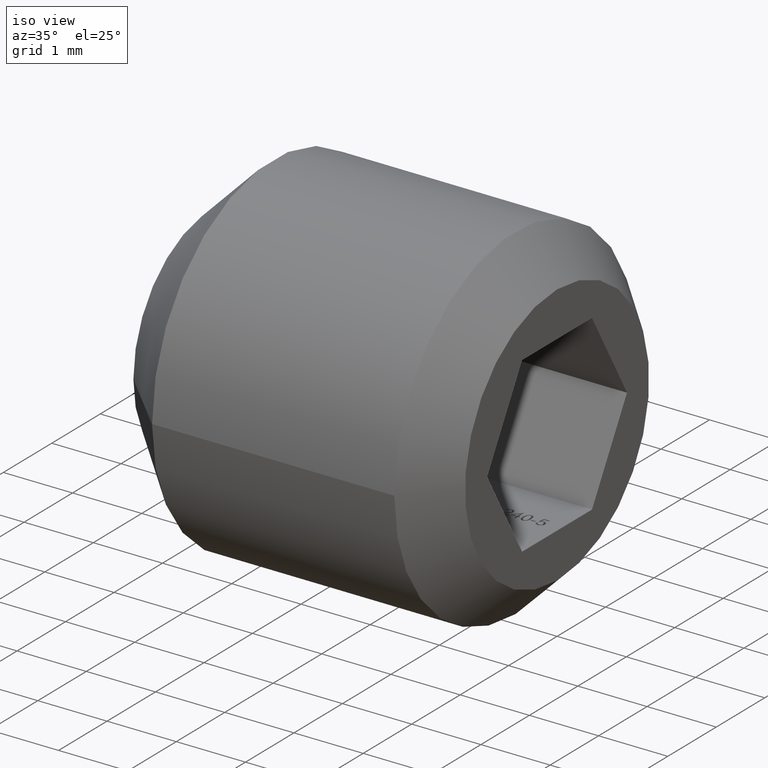
[diagram: clean part render]
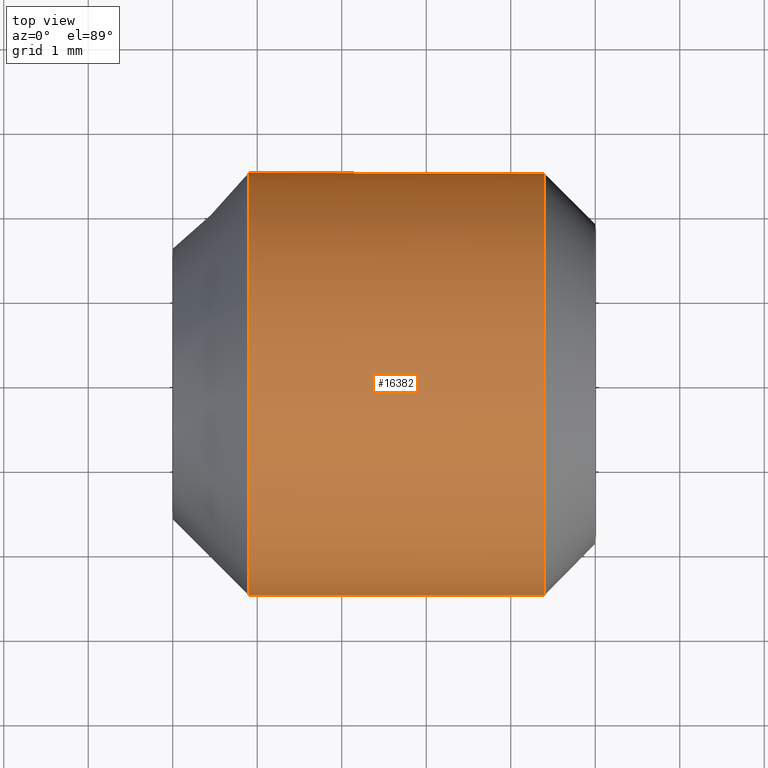
[diagram: tour spotlight — one face highlighted and labeled with its STEP entity id]
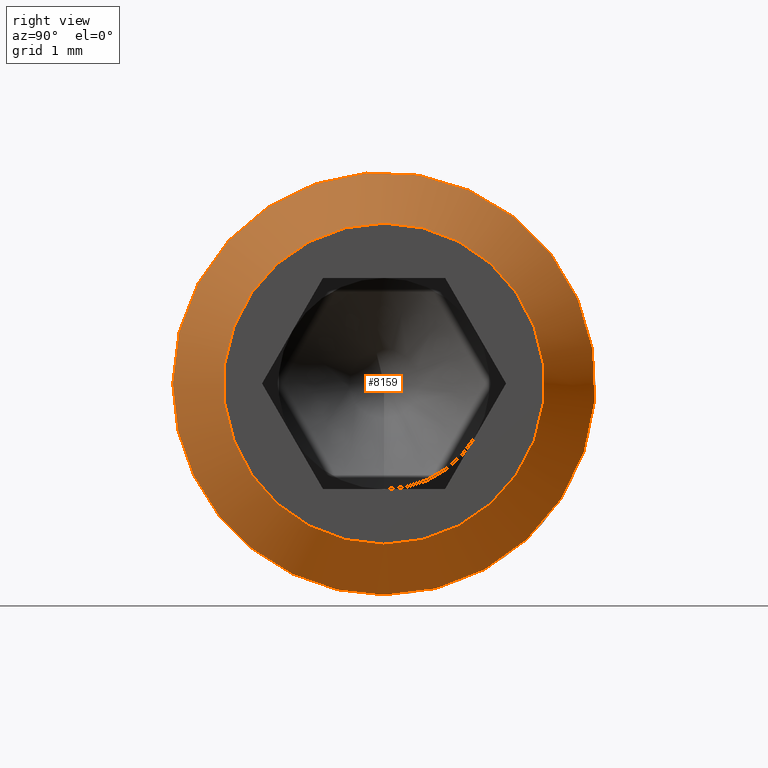
[diagram: tour spotlight — one face highlighted and labeled with its STEP entity id]
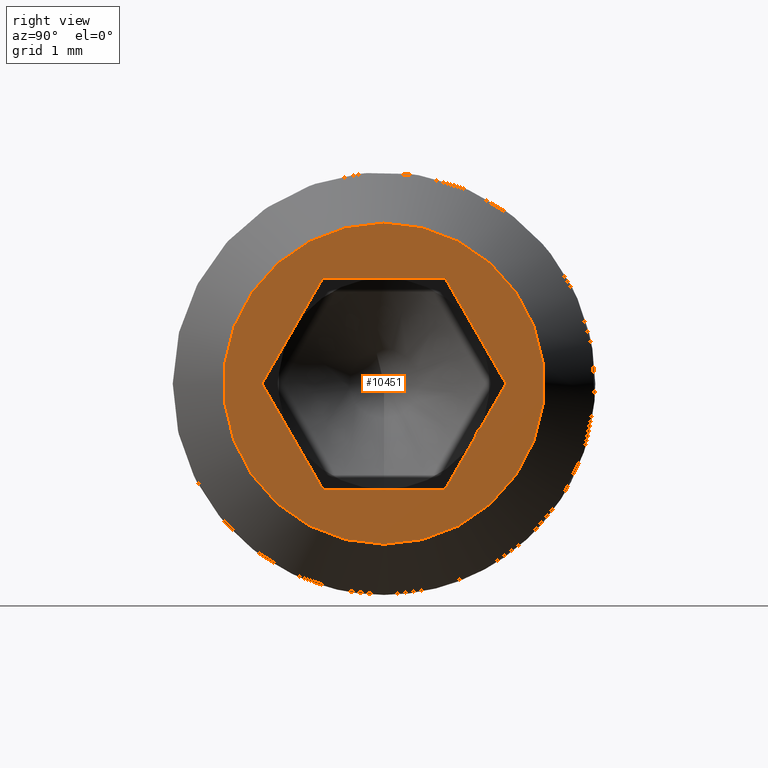
[diagram: tour spotlight — one face highlighted and labeled with its STEP entity id]
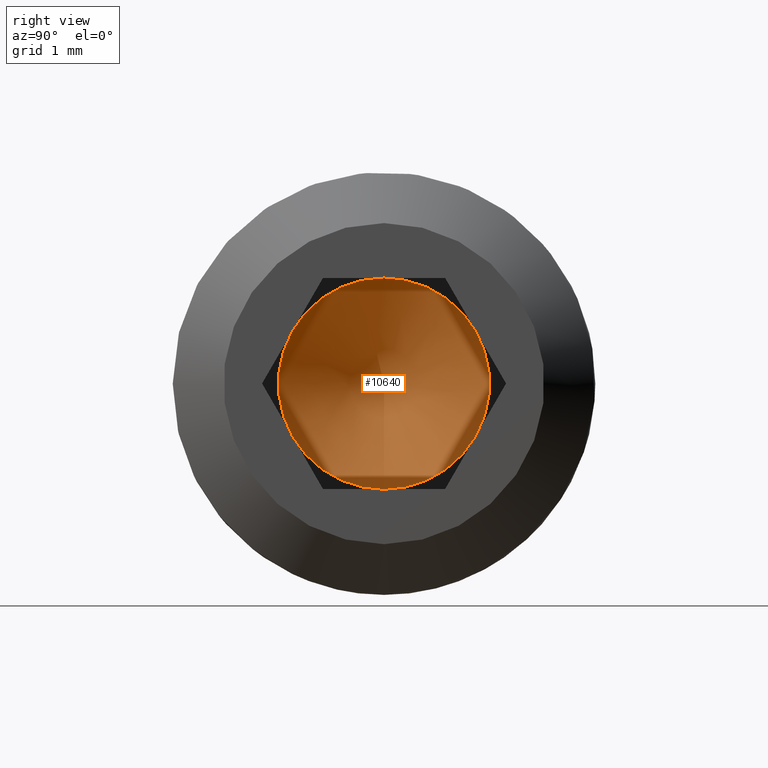
[diagram: tour spotlight — one face highlighted and labeled with its STEP entity id]
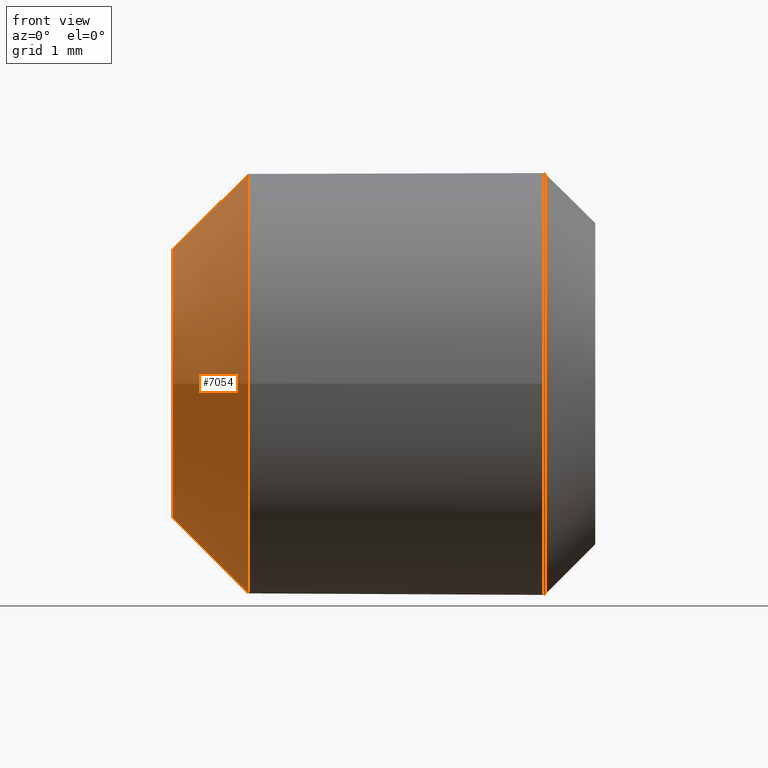
[diagram: tour spotlight — one face highlighted and labeled with its STEP entity id]
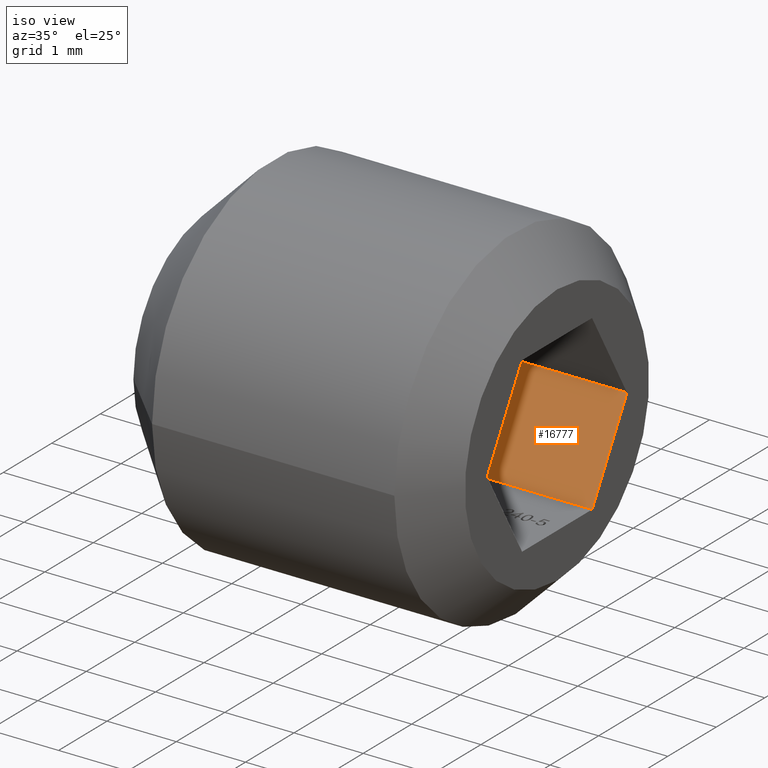
[diagram: tour spotlight — one face highlighted and labeled with its STEP entity id]
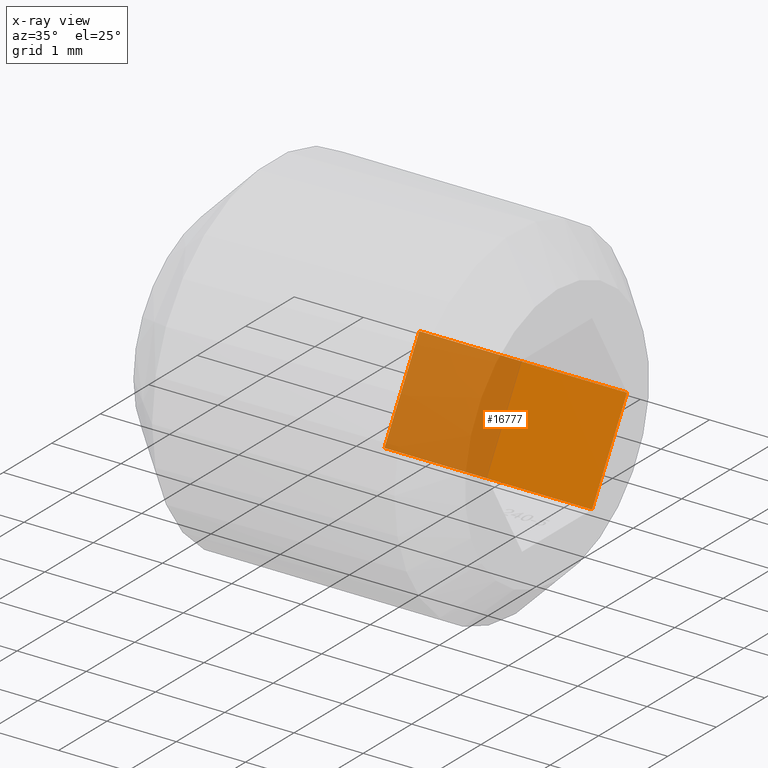
[diagram: x-ray of the same camera — body ghosted, this tour face saturated]
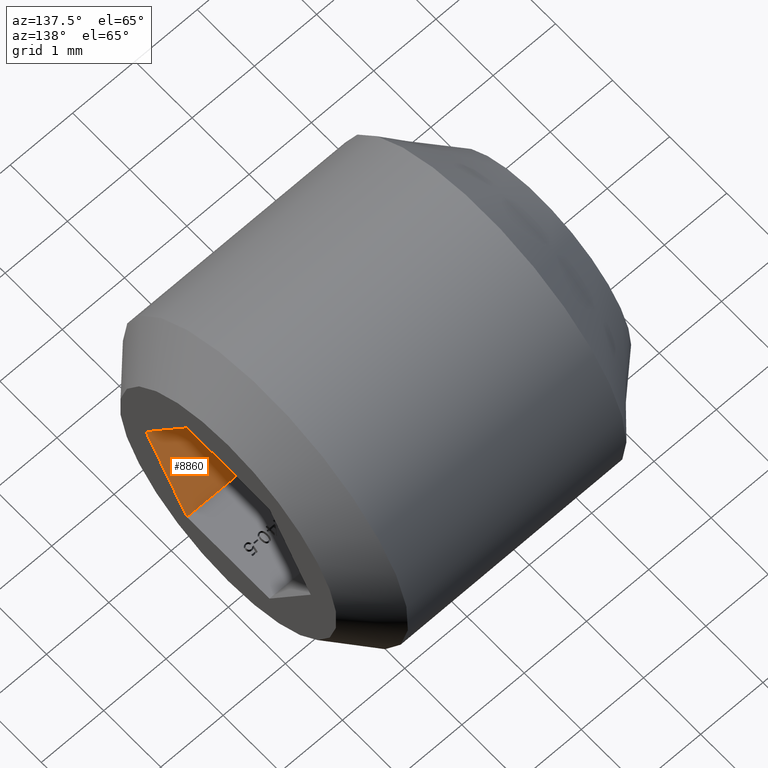
[diagram: tour spotlight — one face highlighted and labeled with its STEP entity id]
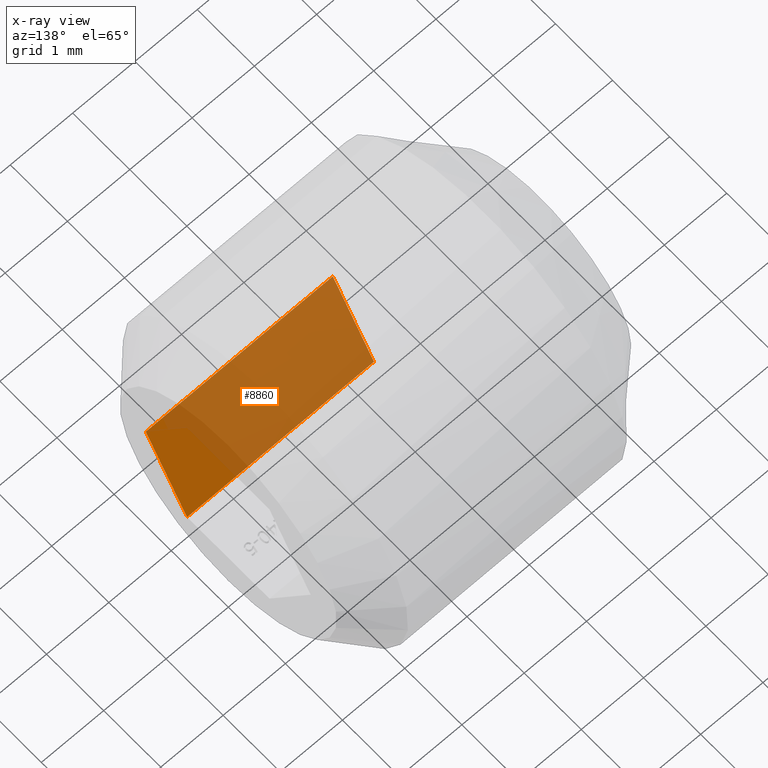
[diagram: x-ray of the same camera — body ghosted, this tour face saturated]
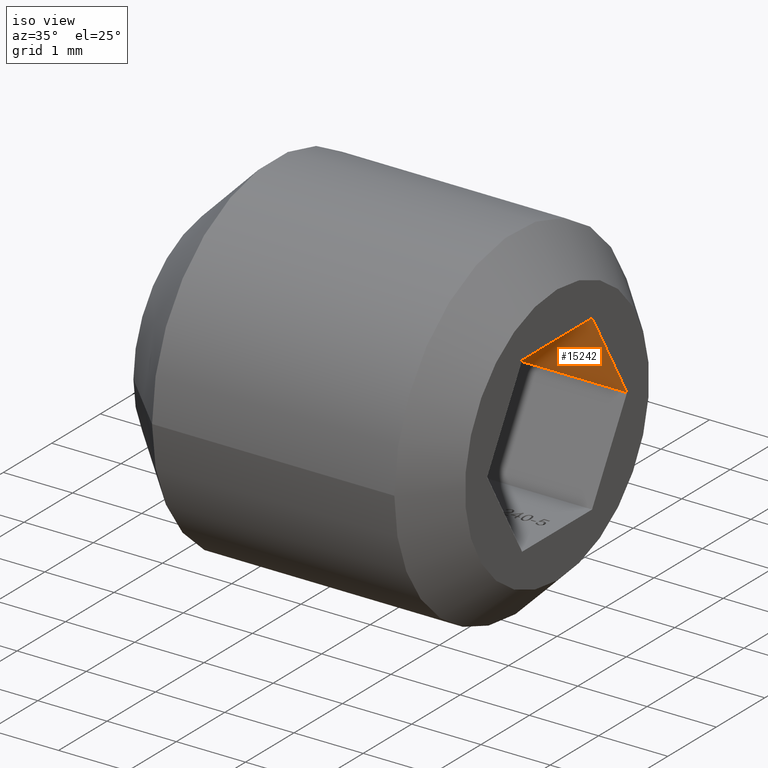
[diagram: tour spotlight — one face highlighted and labeled with its STEP entity id]
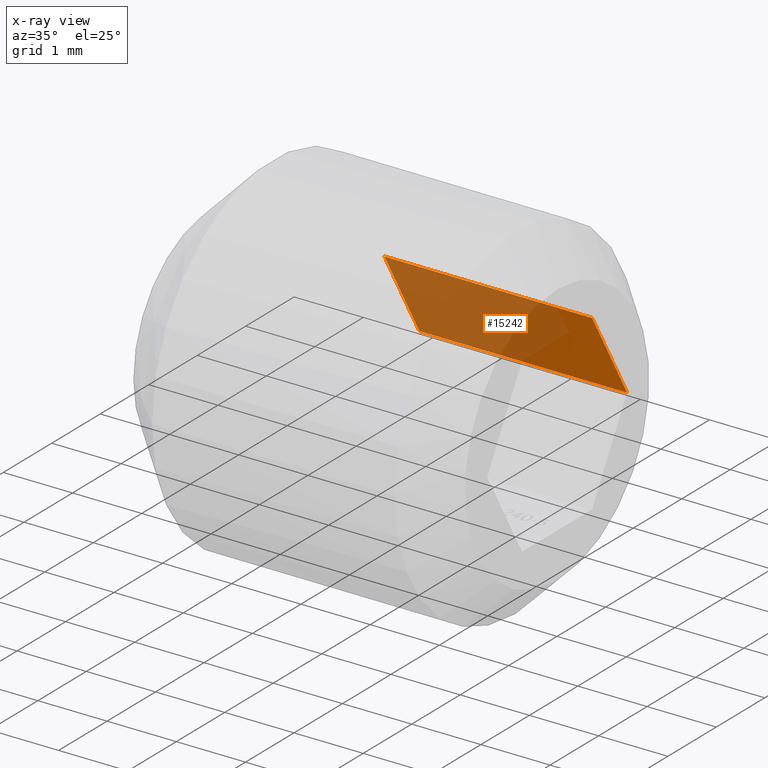
[diagram: x-ray of the same camera — body ghosted, this tour face saturated]
A machine part: a face-by-face anatomy tour. The part has 291 B-rep faces; the first image is the clean iso view, then the 8 largest visible faces are spotlighted one at a time (largest first), each with its STEP entity span.

Face 1 — top view, entity #16382. In plain terms, the highlighted cylindrical surface (bore or boss wall) has radius 2.5 mm, axis along (-1, -0, -0).
Definition (entity closure, byte-faithful):
#879 = CARTESIAN_POINT ( 'NONE',  ( 4.399999999999997700, 0.0000000000000000000, -2.500000000000000000 ) ) ;
#1143 = DIRECTION ( 'NONE',  ( 0.0000000000000000000, 0.0000000000000000000, 1.000000000000000000 ) ) ;
#2328 = EDGE_CURVE ( 'NONE', #17656, #17656, #7655, .T. ) ;
#2607 = EDGE_LOOP ( 'NONE', ( #12114 ) ) ;
#4546 = AXIS2_PLACEMENT_3D ( 'NONE', #13541, #5160, #1143 ) ;
#5016 = CYLINDRICAL_SURFACE ( 'NONE', #4546, 2.500000000000000000 ) ;
#5160 = DIRECTION ( 'NONE',  ( -1.000000000000000000, -0.0000000000000000000, -0.0000000000000000000 ) ) ;
#5465 = FACE_OUTER_BOUND ( 'NONE', #13045, .T. ) ;
#6861 = AXIS2_PLACEMENT_3D ( 'NONE', #18018, #13728, #15215 ) ;
#7655 = CIRCLE ( 'NONE', #6861, 2.500000000000000000 ) ;
#8594 = CARTESIAN_POINT ( 'NONE',  ( 0.8999999999999902500, -4.538988261647317300E-017, 0.0000000000000000000 ) ) ;
#8674 = VERTEX_POINT ( 'NONE', #17772 ) ;
#12114 = ORIENTED_EDGE ( 'NONE', *, *, #17351, .F. ) ;
#13045 = EDGE_LOOP ( 'NONE', ( #16623 ) ) ;
#13541 = CARTESIAN_POINT ( 'NONE',  ( 5.000000000000000000, 0.0000000000000000000, 0.0000000000000000000 ) ) ;
#13728 = DIRECTION ( 'NONE',  ( -1.000000000000000000, 0.0000000000000000000, 0.0000000000000000000 ) ) ;
#14121 = DIRECTION ( 'NONE',  ( -1.000000000000000000, 5.043320290719296800E-017, -0.0000000000000000000 ) ) ;
#15215 = DIRECTION ( 'NONE',  ( 0.0000000000000000000, 0.0000000000000000000, -1.000000000000000000 ) ) ;
#15328 = FACE_OUTER_BOUND ( 'NONE', #2607, .T. ) ;
#15517 = DIRECTION ( 'NONE',  ( -4.336808689942017700E-017, -1.000000000000000000, 0.0000000000000000000 ) ) ;
#16168 = AXIS2_PLACEMENT_3D ( 'NONE', #8594, #14121, #15517 ) ;
#16382 = ADVANCED_FACE ( 'NONE', ( #5465, #15328 ), #5016, .T. ) ;
#16623 = ORIENTED_EDGE ( 'NONE', *, *, #2328, .T. ) ;
#17351 = EDGE_CURVE ( 'NONE', #8674, #8674, #17553, .T. ) ;
#17553 = CIRCLE ( 'NONE', #16168, 2.500000000000000000 ) ;
#17656 = VERTEX_POINT ( 'NONE', #879 ) ;
#17772 = CARTESIAN_POINT ( 'NONE',  ( 0.8999999999999901400, -2.500000000000000000, 0.0000000000000000000 ) ) ;
#18018 = CARTESIAN_POINT ( 'NONE',  ( 4.399999999999997700, 0.0000000000000000000, 0.0000000000000000000 ) ) ;

Face 2 — right view, entity #8159. In plain terms, the highlighted conical surface has half-angle 45 deg.
Definition (entity closure, byte-faithful):
#879 = CARTESIAN_POINT ( 'NONE',  ( 4.399999999999997700, 0.0000000000000000000, -2.500000000000000000 ) ) ;
#1051 = VERTEX_POINT ( 'NONE', #9165 ) ;
#1535 = FACE_OUTER_BOUND ( 'NONE', #3578, .T. ) ;
#2214 = FACE_BOUND ( 'NONE', #14066, .T. ) ;
#2328 = EDGE_CURVE ( 'NONE', #17656, #17656, #7655, .T. ) ;
#3578 = EDGE_LOOP ( 'NONE', ( #7687 ) ) ;
#4410 = CIRCLE ( 'NONE', #4864, 1.900000000000000100 ) ;
#4550 = EDGE_CURVE ( 'NONE', #1051, #1051, #4410, .T. ) ;
#4864 = AXIS2_PLACEMENT_3D ( 'NONE', #14611, #17233, #8834 ) ;
#6861 = AXIS2_PLACEMENT_3D ( 'NONE', #18018, #13728, #15215 ) ;
#7655 = CIRCLE ( 'NONE', #6861, 2.500000000000000000 ) ;
#7687 = ORIENTED_EDGE ( 'NONE', *, *, #2328, .F. ) ;
#8159 = ADVANCED_FACE ( 'NONE', ( #1535, #2214 ), #14476, .T. ) ;
#8761 = ORIENTED_EDGE ( 'NONE', *, *, #4550, .F. ) ;
#8834 = DIRECTION ( 'NONE',  ( 0.0000000000000000000, 0.0000000000000000000, -1.000000000000000000 ) ) ;
#9165 = CARTESIAN_POINT ( 'NONE',  ( 5.000000000000000000, 0.0000000000000000000, -1.900000000000000100 ) ) ;
#10909 = CARTESIAN_POINT ( 'NONE',  ( 5.000000000000000000, 0.0000000000000000000, 0.0000000000000000000 ) ) ;
#13728 = DIRECTION ( 'NONE',  ( -1.000000000000000000, 0.0000000000000000000, 0.0000000000000000000 ) ) ;
#14066 = EDGE_LOOP ( 'NONE', ( #8761 ) ) ;
#14476 = CONICAL_SURFACE ( 'NONE', #16828, 1.900000000000000100, 0.7853981633974460600 ) ;
#14611 = CARTESIAN_POINT ( 'NONE',  ( 5.000000000000000000, 0.0000000000000000000, 0.0000000000000000000 ) ) ;
#14977 = DIRECTION ( 'NONE',  ( -1.000000000000000000, 0.0000000000000000000, 0.0000000000000000000 ) ) ;
#15215 = DIRECTION ( 'NONE',  ( 0.0000000000000000000, 0.0000000000000000000, -1.000000000000000000 ) ) ;
#15217 = DIRECTION ( 'NONE',  ( 0.0000000000000000000, 0.0000000000000000000, 1.000000000000000000 ) ) ;
#16828 = AXIS2_PLACEMENT_3D ( 'NONE', #10909, #14977, #15217 ) ;
#17233 = DIRECTION ( 'NONE',  ( 1.000000000000000000, 0.0000000000000000000, 0.0000000000000000000 ) ) ;
#17656 = VERTEX_POINT ( 'NONE', #879 ) ;
#18018 = CARTESIAN_POINT ( 'NONE',  ( 4.399999999999997700, 0.0000000000000000000, 0.0000000000000000000 ) ) ;

Face 3 — right view, entity #10451. In plain terms, the highlighted planar face has unit normal (1, 0, 0).
Definition (entity closure, byte-faithful):
#20 = EDGE_CURVE ( 'NONE', #17549, #14744, #13163, .T. ) ;
#519 = CARTESIAN_POINT ( 'NONE',  ( 5.000000000000000000, 0.0000000000000000000, 0.0000000000000000000 ) ) ;
#1051 = VERTEX_POINT ( 'NONE', #9165 ) ;
#1136 = VERTEX_POINT ( 'NONE', #14473 ) ;
#1676 = CARTESIAN_POINT ( 'NONE',  ( 5.000000000000000000, -1.443375672974064300, 1.084202172485504400E-016 ) ) ;
#1838 = PLANE ( 'NONE',  #11455 ) ;
#2022 = ORIENTED_EDGE ( 'NONE', *, *, #2345, .F. ) ;
#2345 = EDGE_CURVE ( 'NONE', #2901, #6518, #17953, .T. ) ;
#2519 = CARTESIAN_POINT ( 'NONE',  ( 5.000000000000000000, 0.7216878364870360500, -1.249999999999995300 ) ) ;
#2901 = VERTEX_POINT ( 'NONE', #2519 ) ;
#3064 = DIRECTION ( 'NONE',  ( 0.0000000000000000000, -1.000000000000000000, -2.103240438232020900E-015 ) ) ;
#3224 = VECTOR ( 'NONE', #4726, 999.9999999999998900 ) ;
#3554 = VERTEX_POINT ( 'NONE', #11967 ) ;
#3767 = DIRECTION ( 'NONE',  ( 0.0000000000000000000, 1.000000000000000000, 2.553934817853168700E-015 ) ) ;
#4410 = CIRCLE ( 'NONE', #4864, 1.900000000000000100 ) ;
#4550 = EDGE_CURVE ( 'NONE', #1051, #1051, #4410, .T. ) ;
#4726 = DIRECTION ( 'NONE',  ( 0.0000000000000000000, -0.5000000000000020000, 0.8660254037844374900 ) ) ;
#4864 = AXIS2_PLACEMENT_3D ( 'NONE', #14611, #17233, #8834 ) ;
#5299 = ORIENTED_EDGE ( 'NONE', *, *, #5505, .F. ) ;
#5349 = DIRECTION ( 'NONE',  ( 0.0000000000000000000, 0.4999999999999979500, 0.8660254037844397100 ) ) ;
#5505 = EDGE_CURVE ( 'NONE', #3554, #17549, #8178, .T. ) ;
#6518 = VERTEX_POINT ( 'NONE', #15184 ) ;
#6755 = CARTESIAN_POINT ( 'NONE',  ( 5.000000000000000000, -0.7216878364870293900, -1.249999999999998900 ) ) ;
#6784 = VECTOR ( 'NONE', #5349, 1000.000000000000100 ) ;
#7047 = ORIENTED_EDGE ( 'NONE', *, *, #20, .F. ) ;
#7083 = EDGE_LOOP ( 'NONE', ( #5299, #7415, #13206, #2022, #15228, #7047 ) ) ;
#7415 = ORIENTED_EDGE ( 'NONE', *, *, #15254, .F. ) ;
#7512 = VECTOR ( 'NONE', #12121, 1000.000000000000200 ) ;
#7671 = CARTESIAN_POINT ( 'NONE',  ( 5.000000000000000000, -1.443375672974064300, 0.0000000000000000000 ) ) ;
#8178 = LINE ( 'NONE', #9204, #7512 ) ;
#8834 = DIRECTION ( 'NONE',  ( 0.0000000000000000000, 0.0000000000000000000, -1.000000000000000000 ) ) ;
#8949 = FACE_BOUND ( 'NONE', #7083, .T. ) ;
#9165 = CARTESIAN_POINT ( 'NONE',  ( 5.000000000000000000, 0.0000000000000000000, -1.900000000000000100 ) ) ;
#9204 = CARTESIAN_POINT ( 'NONE',  ( 5.000000000000000000, -0.7216878364870356100, 1.250000000000001100 ) ) ;
#9892 = ORIENTED_EDGE ( 'NONE', *, *, #4550, .T. ) ;
#10451 = ADVANCED_FACE ( 'NONE', ( #8949, #16189 ), #1838, .T. ) ;
#11117 = EDGE_CURVE ( 'NONE', #14744, #2901, #11345, .T. ) ;
#11345 = LINE ( 'NONE', #6755, #17926 ) ;
#11436 = CARTESIAN_POINT ( 'NONE',  ( 5.000000000000000000, 0.7216878364870301700, 1.250000000000004200 ) ) ;
#11455 = AXIS2_PLACEMENT_3D ( 'NONE', #519, #13160, #14256 ) ;
#11921 = CARTESIAN_POINT ( 'NONE',  ( 5.000000000000000000, 1.443375672974065200, 6.122830440433802600E-015 ) ) ;
#11967 = CARTESIAN_POINT ( 'NONE',  ( 5.000000000000000000, -0.7216878364870356100, 1.250000000000001100 ) ) ;
#12121 = DIRECTION ( 'NONE',  ( 0.0000000000000000000, -0.4999999999999977800, -0.8660254037844399300 ) ) ;
#13160 = DIRECTION ( 'NONE',  ( 1.000000000000000000, 0.0000000000000000000, 0.0000000000000000000 ) ) ;
#13163 = LINE ( 'NONE', #7671, #17561 ) ;
#13206 = ORIENTED_EDGE ( 'NONE', *, *, #14666, .F. ) ;
#13813 = LINE ( 'NONE', #11436, #15346 ) ;
#14256 = DIRECTION ( 'NONE',  ( 0.0000000000000000000, 0.0000000000000000000, -1.000000000000000000 ) ) ;
#14473 = CARTESIAN_POINT ( 'NONE',  ( 5.000000000000000000, 0.7216878364870301700, 1.250000000000004200 ) ) ;
#14611 = CARTESIAN_POINT ( 'NONE',  ( 5.000000000000000000, 0.0000000000000000000, 0.0000000000000000000 ) ) ;
#14666 = EDGE_CURVE ( 'NONE', #6518, #1136, #18103, .T. ) ;
#14744 = VERTEX_POINT ( 'NONE', #14978 ) ;
#14978 = CARTESIAN_POINT ( 'NONE',  ( 5.000000000000000000, -0.7216878364870293900, -1.249999999999998900 ) ) ;
#15184 = CARTESIAN_POINT ( 'NONE',  ( 5.000000000000000000, 1.443375672974065200, 6.122830440433802600E-015 ) ) ;
#15228 = ORIENTED_EDGE ( 'NONE', *, *, #11117, .F. ) ;
#15254 = EDGE_CURVE ( 'NONE', #1136, #3554, #13813, .T. ) ;
#15346 = VECTOR ( 'NONE', #3064, 1000.000000000000000 ) ;
#15590 = EDGE_LOOP ( 'NONE', ( #9892 ) ) ;
#16189 = FACE_OUTER_BOUND ( 'NONE', #15590, .T. ) ;
#17233 = DIRECTION ( 'NONE',  ( 1.000000000000000000, 0.0000000000000000000, 0.0000000000000000000 ) ) ;
#17538 = DIRECTION ( 'NONE',  ( 0.0000000000000000000, 0.5000000000000016700, -0.8660254037844376000 ) ) ;
#17549 = VERTEX_POINT ( 'NONE', #1676 ) ;
#17561 = VECTOR ( 'NONE', #17538, 1000.000000000000100 ) ;
#17660 = CARTESIAN_POINT ( 'NONE',  ( 5.000000000000000000, 0.7216878364870360500, -1.249999999999995300 ) ) ;
#17926 = VECTOR ( 'NONE', #3767, 1000.000000000000000 ) ;
#17953 = LINE ( 'NONE', #17660, #6784 ) ;
#18103 = LINE ( 'NONE', #11921, #3224 ) ;

Face 4 — right view, entity #10640. In plain terms, the highlighted conical surface has half-angle 59 deg.
Definition (entity closure, byte-faithful):
#1019 = AXIS2_PLACEMENT_3D ( 'NONE', #7623, #2187, #3542 ) ;
#1341 = VERTEX_POINT ( 'NONE', #12441 ) ;
#2187 = DIRECTION ( 'NONE',  ( -1.000000000000000000, 0.0000000000000000000, 0.0000000000000000000 ) ) ;
#2232 = ORIENTED_EDGE ( 'NONE', *, *, #7549, .F. ) ;
#2598 = DIRECTION ( 'NONE',  ( 0.0000000000000000000, 0.0000000000000000000, -1.000000000000000000 ) ) ;
#2678 = CIRCLE ( 'NONE', #3164, 1.249999999999995600 ) ;
#2903 = VERTEX_POINT ( 'NONE', #17820 ) ;
#3164 = AXIS2_PLACEMENT_3D ( 'NONE', #5503, #15252, #5572 ) ;
#3214 = CARTESIAN_POINT ( 'NONE',  ( 2.000000000000000000, -1.082531754730543100, -0.6249999999999997800 ) ) ;
#3542 = DIRECTION ( 'NONE',  ( 0.0000000000000000000, 0.0000000000000000000, 1.000000000000000000 ) ) ;
#4280 = CARTESIAN_POINT ( 'NONE',  ( 2.000000000000000000, 0.0000000000000000000, 9.777498993208008500E-017 ) ) ;
#5281 = CIRCLE ( 'NONE', #1019, 1.249999999999995600 ) ;
#5503 = CARTESIAN_POINT ( 'NONE',  ( 2.000000000000000000, 0.0000000000000000000, 9.777498993208008500E-017 ) ) ;
#5572 = DIRECTION ( 'NONE',  ( 0.0000000000000000000, 0.0000000000000000000, 1.000000000000000000 ) ) ;
#5678 = CONICAL_SURFACE ( 'NONE', #12406, 1.249999999999995600, 1.029744258676649900 ) ;
#6106 = CIRCLE ( 'NONE', #10647, 1.249999999999995600 ) ;
#6156 = VERTEX_POINT ( 'NONE', #3214 ) ;
#6230 = CARTESIAN_POINT ( 'NONE',  ( 2.000000000000000000, 0.0000000000000000000, 9.777498993208008500E-017 ) ) ;
#6350 = CARTESIAN_POINT ( 'NONE',  ( 2.000000000000000000, 0.0000000000000000000, -2.761169252334698200E-033 ) ) ;
#6561 = CARTESIAN_POINT ( 'NONE',  ( 2.000000000000000000, 0.0000000000000000000, -2.761169252334698200E-033 ) ) ;
#6762 = AXIS2_PLACEMENT_3D ( 'NONE', #4280, #8402, #8562 ) ;
#7381 = DIRECTION ( 'NONE',  ( -1.000000000000000000, 0.0000000000000000000, 0.0000000000000000000 ) ) ;
#7549 = EDGE_CURVE ( 'NONE', #6156, #12758, #5281, .T. ) ;
#7623 = CARTESIAN_POINT ( 'NONE',  ( 2.000000000000000000, 0.0000000000000000000, 9.777498993208008500E-017 ) ) ;
#7728 = EDGE_LOOP ( 'NONE', ( #10971, #17577, #10458, #8821, #2232, #14282 ) ) ;
#8192 = EDGE_CURVE ( 'NONE', #2903, #1341, #11177, .T. ) ;
#8402 = DIRECTION ( 'NONE',  ( -1.000000000000000000, 0.0000000000000000000, 0.0000000000000000000 ) ) ;
#8562 = DIRECTION ( 'NONE',  ( 0.0000000000000000000, 0.0000000000000000000, 1.000000000000000000 ) ) ;
#8821 = ORIENTED_EDGE ( 'NONE', *, *, #11981, .F. ) ;
#8846 = CARTESIAN_POINT ( 'NONE',  ( 2.000000000000000000, 1.082531754730542900, 0.6250000000000003300 ) ) ;
#9495 = DIRECTION ( 'NONE',  ( -1.000000000000000000, 0.0000000000000000000, 0.0000000000000000000 ) ) ;
#9657 = VERTEX_POINT ( 'NONE', #10485 ) ;
#9910 = EDGE_CURVE ( 'NONE', #12015, #1341, #11588, .T. ) ;
#10231 = CIRCLE ( 'NONE', #12637, 1.249999999999995600 ) ;
#10458 = ORIENTED_EDGE ( 'NONE', *, *, #14806, .F. ) ;
#10485 = CARTESIAN_POINT ( 'NONE',  ( 2.000000000000000000, -2.629050547790030900E-015, 1.250000000000002400 ) ) ;
#10640 = ADVANCED_FACE ( 'NONE', ( #14678 ), #5678, .F. ) ;
#10647 = AXIS2_PLACEMENT_3D ( 'NONE', #13861, #9495, #10910 ) ;
#10853 = DIRECTION ( 'NONE',  ( 1.000000000000000000, -0.0000000000000000000, 4.699931278080315600E-017 ) ) ;
#10910 = DIRECTION ( 'NONE',  ( 0.0000000000000000000, 0.0000000000000000000, 1.000000000000000000 ) ) ;
#10971 = ORIENTED_EDGE ( 'NONE', *, *, #8192, .T. ) ;
#11177 = CIRCLE ( 'NONE', #17204, 1.249999999999995600 ) ;
#11378 = CARTESIAN_POINT ( 'NONE',  ( 2.000000000000000000, -1.082531754730546000, 0.6249999999999950000 ) ) ;
#11588 = CIRCLE ( 'NONE', #6762, 1.249999999999995600 ) ;
#11981 = EDGE_CURVE ( 'NONE', #12758, #9657, #10231, .T. ) ;
#12015 = VERTEX_POINT ( 'NONE', #8846 ) ;
#12406 = AXIS2_PLACEMENT_3D ( 'NONE', #6350, #13230, #15970 ) ;
#12441 = CARTESIAN_POINT ( 'NONE',  ( 2.000000000000000000, 1.082531754730545700, -0.6249999999999951200 ) ) ;
#12637 = AXIS2_PLACEMENT_3D ( 'NONE', #6230, #7381, #17383 ) ;
#12758 = VERTEX_POINT ( 'NONE', #11378 ) ;
#13230 = DIRECTION ( 'NONE',  ( 1.000000000000000000, -0.0000000000000000000, 4.699931278080315600E-017 ) ) ;
#13861 = CARTESIAN_POINT ( 'NONE',  ( 2.000000000000000000, 0.0000000000000000000, 9.777498993208008500E-017 ) ) ;
#13923 = EDGE_CURVE ( 'NONE', #2903, #6156, #2678, .T. ) ;
#14282 = ORIENTED_EDGE ( 'NONE', *, *, #13923, .F. ) ;
#14678 = FACE_OUTER_BOUND ( 'NONE', #7728, .T. ) ;
#14806 = EDGE_CURVE ( 'NONE', #9657, #12015, #6106, .T. ) ;
#15252 = DIRECTION ( 'NONE',  ( -1.000000000000000000, 0.0000000000000000000, 0.0000000000000000000 ) ) ;
#15970 = DIRECTION ( 'NONE',  ( 0.0000000000000000000, 0.0000000000000000000, -1.000000000000000000 ) ) ;
#17204 = AXIS2_PLACEMENT_3D ( 'NONE', #6561, #10853, #2598 ) ;
#17383 = DIRECTION ( 'NONE',  ( 0.0000000000000000000, 0.0000000000000000000, 1.000000000000000000 ) ) ;
#17577 = ORIENTED_EDGE ( 'NONE', *, *, #9910, .F. ) ;
#17820 = CARTESIAN_POINT ( 'NONE',  ( 2.000000000000000000, 3.192418522316449200E-015, -1.249999999999995600 ) ) ;

Face 5 — front view, entity #7054. In plain terms, the highlighted conical surface has half-angle 45 deg.
Definition (entity closure, byte-faithful):
#1253 = DIRECTION ( 'NONE',  ( 5.043320290719296200E-017, 1.000000000000000000, 0.0000000000000000000 ) ) ;
#1725 = EDGE_LOOP ( 'NONE', ( #13531 ) ) ;
#2560 = CARTESIAN_POINT ( 'NONE',  ( 2.132221071438559800E-016, -1.075347379388532800E-032, 0.0000000000000000000 ) ) ;
#3711 = DIRECTION ( 'NONE',  ( -1.000000000000000000, 5.043320290719296800E-017, -0.0000000000000000000 ) ) ;
#3807 = CARTESIAN_POINT ( 'NONE',  ( 1.325289824923472500E-016, -1.600000000000000100, 0.0000000000000000000 ) ) ;
#7054 = ADVANCED_FACE ( 'NONE', ( #7275, #10566 ), #9227, .T. ) ;
#7275 = FACE_OUTER_BOUND ( 'NONE', #1725, .T. ) ;
#8094 = CARTESIAN_POINT ( 'NONE',  ( 2.132221071438559800E-016, -1.075347379388532800E-032, 0.0000000000000000000 ) ) ;
#8276 = DIRECTION ( 'NONE',  ( 1.000000000000000000, -5.043320290719296800E-017, 0.0000000000000000000 ) ) ;
#8594 = CARTESIAN_POINT ( 'NONE',  ( 0.8999999999999902500, -4.538988261647317300E-017, 0.0000000000000000000 ) ) ;
#8674 = VERTEX_POINT ( 'NONE', #17772 ) ;
#9227 = CONICAL_SURFACE ( 'NONE', #15086, 1.600000000000000100, 0.7853981633974538300 ) ;
#9322 = DIRECTION ( 'NONE',  ( -5.043320290719296200E-017, -1.000000000000000000, 0.0000000000000000000 ) ) ;
#10566 = FACE_BOUND ( 'NONE', #11019, .T. ) ;
#10759 = AXIS2_PLACEMENT_3D ( 'NONE', #2560, #3711, #9322 ) ;
#11019 = EDGE_LOOP ( 'NONE', ( #13377 ) ) ;
#11984 = CIRCLE ( 'NONE', #10759, 1.600000000000000100 ) ;
#13329 = EDGE_CURVE ( 'NONE', #17435, #17435, #11984, .T. ) ;
#13377 = ORIENTED_EDGE ( 'NONE', *, *, #13329, .F. ) ;
#13531 = ORIENTED_EDGE ( 'NONE', *, *, #17351, .T. ) ;
#14121 = DIRECTION ( 'NONE',  ( -1.000000000000000000, 5.043320290719296800E-017, -0.0000000000000000000 ) ) ;
#15086 = AXIS2_PLACEMENT_3D ( 'NONE', #8094, #8276, #1253 ) ;
#15517 = DIRECTION ( 'NONE',  ( -4.336808689942017700E-017, -1.000000000000000000, 0.0000000000000000000 ) ) ;
#16168 = AXIS2_PLACEMENT_3D ( 'NONE', #8594, #14121, #15517 ) ;
#17351 = EDGE_CURVE ( 'NONE', #8674, #8674, #17553, .T. ) ;
#17435 = VERTEX_POINT ( 'NONE', #3807 ) ;
#17553 = CIRCLE ( 'NONE', #16168, 2.500000000000000000 ) ;
#17772 = CARTESIAN_POINT ( 'NONE',  ( 0.8999999999999901400, -2.500000000000000000, 0.0000000000000000000 ) ) ;

Face 6 — iso view, entity #16777. An x-ray twin of the same camera follows (body ghosted, this face saturated) — the face is partly hidden behind the body. In plain terms, the highlighted planar face has unit normal (0, 0.866, -0.5).
Definition (entity closure, byte-faithful):
#411 = CARTESIAN_POINT ( 'NONE',  ( 2.000000000000000000, 1.443375672974065200, 5.939139487360446000E-015 ) ) ;
#470 = DIRECTION ( 'NONE',  ( 1.000000000000000000, -0.0000000000000000000, 6.123031769111886300E-017 ) ) ;
#766 = VERTEX_POINT ( 'NONE', #4976 ) ;
#1160 = EDGE_CURVE ( 'NONE', #766, #2901, #11616, .T. ) ;
#1310 = VECTOR ( 'NONE', #12682, 1000.000000000000100 ) ;
#1341 = VERTEX_POINT ( 'NONE', #12441 ) ;
#1571 = VERTEX_POINT ( 'NONE', #9471 ) ;
#2345 = EDGE_CURVE ( 'NONE', #2901, #6518, #17953, .T. ) ;
#2519 = CARTESIAN_POINT ( 'NONE',  ( 5.000000000000000000, 0.7216878364870360500, -1.249999999999995300 ) ) ;
#2901 = VERTEX_POINT ( 'NONE', #2519 ) ;
#3026 = ORIENTED_EDGE ( 'NONE', *, *, #4994, .F. ) ;
#3121 = LINE ( 'NONE', #411, #6395 ) ;
#4976 = CARTESIAN_POINT ( 'NONE',  ( 2.000000000000000000, 0.7216878364870360500, -1.249999999999995600 ) ) ;
#4994 = EDGE_CURVE ( 'NONE', #1571, #6518, #3121, .T. ) ;
#5349 = DIRECTION ( 'NONE',  ( 0.0000000000000000000, 0.4999999999999979500, 0.8660254037844397100 ) ) ;
#5456 = CARTESIAN_POINT ( 'NONE',  ( 2.000000000000000000, 0.7216878364870360500, -1.249999999999995600 ) ) ;
#6395 = VECTOR ( 'NONE', #470, 1000.000000000000000 ) ;
#6486 = CARTESIAN_POINT ( 'NONE',  ( 2.000000000000000000, 0.7216878364870360500, -1.249999999999995600 ) ) ;
#6518 = VERTEX_POINT ( 'NONE', #15184 ) ;
#6784 = VECTOR ( 'NONE', #5349, 1000.000000000000100 ) ;
#7057 = DIRECTION ( 'NONE',  ( 0.0000000000000000000, 0.4999999999999979500, 0.8660254037844397100 ) ) ;
#7373 = AXIS2_PLACEMENT_3D ( 'NONE', #6486, #17759, #9341 ) ;
#8083 = ORIENTED_EDGE ( 'NONE', *, *, #8404, .F. ) ;
#8404 = EDGE_CURVE ( 'NONE', #766, #1341, #9399, .T. ) ;
#9289 = EDGE_LOOP ( 'NONE', ( #11125, #3026, #17605, #8083, #9894 ) ) ;
#9341 = DIRECTION ( 'NONE',  ( 0.0000000000000000000, 0.4999999999999979500, 0.8660254037844397100 ) ) ;
#9399 = LINE ( 'NONE', #5456, #16220 ) ;
#9471 = CARTESIAN_POINT ( 'NONE',  ( 2.000000000000000000, 1.443375672974065200, 5.939139487360446000E-015 ) ) ;
#9894 = ORIENTED_EDGE ( 'NONE', *, *, #1160, .T. ) ;
#10088 = FACE_OUTER_BOUND ( 'NONE', #9289, .T. ) ;
#10731 = VECTOR ( 'NONE', #14971, 1000.000000000000000 ) ;
#11125 = ORIENTED_EDGE ( 'NONE', *, *, #2345, .T. ) ;
#11147 = CARTESIAN_POINT ( 'NONE',  ( 2.000000000000000000, 0.7216878364870360500, -1.249999999999995600 ) ) ;
#11616 = LINE ( 'NONE', #14896, #10731 ) ;
#12441 = CARTESIAN_POINT ( 'NONE',  ( 2.000000000000000000, 1.082531754730545700, -0.6249999999999951200 ) ) ;
#12682 = DIRECTION ( 'NONE',  ( 0.0000000000000000000, 0.4999999999999979500, 0.8660254037844397100 ) ) ;
#13523 = PLANE ( 'NONE',  #7373 ) ;
#14896 = CARTESIAN_POINT ( 'NONE',  ( 2.000000000000000000, 0.7216878364870360500, -1.249999999999995600 ) ) ;
#14971 = DIRECTION ( 'NONE',  ( 1.000000000000000000, -0.0000000000000000000, 6.123031769111886300E-017 ) ) ;
#15184 = CARTESIAN_POINT ( 'NONE',  ( 5.000000000000000000, 1.443375672974065200, 6.122830440433802600E-015 ) ) ;
#15759 = LINE ( 'NONE', #11147, #1310 ) ;
#16220 = VECTOR ( 'NONE', #7057, 1000.000000000000100 ) ;
#16443 = EDGE_CURVE ( 'NONE', #1341, #1571, #15759, .T. ) ;
#16777 = ADVANCED_FACE ( 'NONE', ( #10088 ), #13523, .F. ) ;
#17605 = ORIENTED_EDGE ( 'NONE', *, *, #16443, .F. ) ;
#17660 = CARTESIAN_POINT ( 'NONE',  ( 5.000000000000000000, 0.7216878364870360500, -1.249999999999995300 ) ) ;
#17759 = DIRECTION ( 'NONE',  ( 3.061515884555931400E-017, 0.8660254037844398200, -0.4999999999999980000 ) ) ;
#17953 = LINE ( 'NONE', #17660, #6784 ) ;

Face 7 — auxiliary view, entity #8860. An x-ray twin of the same camera follows (body ghosted, this face saturated) — the face is partly hidden behind the body. In plain terms, the highlighted planar face has unit normal (0, -0.866, -0.5).
Definition (entity closure, byte-faithful):
#20 = EDGE_CURVE ( 'NONE', #17549, #14744, #13163, .T. ) ;
#391 = LINE ( 'NONE', #13503, #1047 ) ;
#632 = VERTEX_POINT ( 'NONE', #15640 ) ;
#763 = DIRECTION ( 'NONE',  ( 1.000000000000000000, -0.0000000000000000000, 6.123031769111886300E-017 ) ) ;
#1047 = VECTOR ( 'NONE', #8116, 1000.000000000000000 ) ;
#1166 = VECTOR ( 'NONE', #8770, 1000.000000000000100 ) ;
#1676 = CARTESIAN_POINT ( 'NONE',  ( 5.000000000000000000, -1.443375672974064300, 1.084202172485504400E-016 ) ) ;
#3214 = CARTESIAN_POINT ( 'NONE',  ( 2.000000000000000000, -1.082531754730543100, -0.6249999999999997800 ) ) ;
#3343 = ORIENTED_EDGE ( 'NONE', *, *, #10547, .F. ) ;
#4697 = EDGE_CURVE ( 'NONE', #632, #6156, #13632, .T. ) ;
#5801 = DIRECTION ( 'NONE',  ( 0.0000000000000000000, 0.5000000000000016700, -0.8660254037844376000 ) ) ;
#6156 = VERTEX_POINT ( 'NONE', #3214 ) ;
#7663 = VECTOR ( 'NONE', #5801, 1000.000000000000100 ) ;
#7671 = CARTESIAN_POINT ( 'NONE',  ( 5.000000000000000000, -1.443375672974064300, 0.0000000000000000000 ) ) ;
#7832 = EDGE_LOOP ( 'NONE', ( #11052, #3343, #12865, #9667, #14249 ) ) ;
#8116 = DIRECTION ( 'NONE',  ( 1.000000000000000000, -0.0000000000000000000, 6.123031769111886300E-017 ) ) ;
#8382 = CARTESIAN_POINT ( 'NONE',  ( 2.000000000000000000, -1.443375672974064300, -1.836909530733565900E-016 ) ) ;
#8429 = PLANE ( 'NONE',  #18128 ) ;
#8770 = DIRECTION ( 'NONE',  ( 0.0000000000000000000, 0.5000000000000016700, -0.8660254037844376000 ) ) ;
#8860 = ADVANCED_FACE ( 'NONE', ( #15547 ), #8429, .F. ) ;
#8972 = CARTESIAN_POINT ( 'NONE',  ( 2.000000000000000000, -0.7216878364870293900, -1.249999999999999100 ) ) ;
#9455 = EDGE_CURVE ( 'NONE', #6156, #13573, #17074, .T. ) ;
#9667 = ORIENTED_EDGE ( 'NONE', *, *, #4697, .F. ) ;
#9958 = CARTESIAN_POINT ( 'NONE',  ( 2.000000000000000000, -1.443375672974064300, -1.836909530733565900E-016 ) ) ;
#10490 = LINE ( 'NONE', #8972, #15314 ) ;
#10547 = EDGE_CURVE ( 'NONE', #13573, #14744, #10490, .T. ) ;
#11052 = ORIENTED_EDGE ( 'NONE', *, *, #20, .T. ) ;
#11354 = DIRECTION ( 'NONE',  ( 3.061515884555954200E-017, -0.8660254037844377100, -0.5000000000000016700 ) ) ;
#11600 = CARTESIAN_POINT ( 'NONE',  ( 2.000000000000000000, -0.7216878364870293900, -1.249999999999999100 ) ) ;
#12786 = DIRECTION ( 'NONE',  ( 0.0000000000000000000, 0.5000000000000016700, -0.8660254037844377100 ) ) ;
#12865 = ORIENTED_EDGE ( 'NONE', *, *, #9455, .F. ) ;
#13163 = LINE ( 'NONE', #7671, #17561 ) ;
#13334 = EDGE_CURVE ( 'NONE', #632, #17549, #391, .T. ) ;
#13503 = CARTESIAN_POINT ( 'NONE',  ( 2.000000000000000000, -1.443375672974064300, -1.836909530733565900E-016 ) ) ;
#13573 = VERTEX_POINT ( 'NONE', #11600 ) ;
#13632 = LINE ( 'NONE', #17183, #1166 ) ;
#14249 = ORIENTED_EDGE ( 'NONE', *, *, #13334, .T. ) ;
#14744 = VERTEX_POINT ( 'NONE', #14978 ) ;
#14978 = CARTESIAN_POINT ( 'NONE',  ( 5.000000000000000000, -0.7216878364870293900, -1.249999999999998900 ) ) ;
#15314 = VECTOR ( 'NONE', #763, 1000.000000000000000 ) ;
#15547 = FACE_OUTER_BOUND ( 'NONE', #7832, .T. ) ;
#15640 = CARTESIAN_POINT ( 'NONE',  ( 2.000000000000000000, -1.443375672974064300, -1.836909530733565900E-016 ) ) ;
#17074 = LINE ( 'NONE', #8382, #7663 ) ;
#17183 = CARTESIAN_POINT ( 'NONE',  ( 2.000000000000000000, -1.443375672974064300, -1.836909530733565900E-016 ) ) ;
#17538 = DIRECTION ( 'NONE',  ( 0.0000000000000000000, 0.5000000000000016700, -0.8660254037844376000 ) ) ;
#17549 = VERTEX_POINT ( 'NONE', #1676 ) ;
#17561 = VECTOR ( 'NONE', #17538, 1000.000000000000100 ) ;
#18128 = AXIS2_PLACEMENT_3D ( 'NONE', #9958, #11354, #12786 ) ;

Face 8 — iso view, entity #15242. An x-ray twin of the same camera follows (body ghosted, this face saturated) — the face is partly hidden behind the body. In plain terms, the highlighted planar face has unit normal (-0, 0.866, 0.5).
Definition (entity closure, byte-faithful):
#21 = CARTESIAN_POINT ( 'NONE',  ( 2.000000000000000000, 1.443375672974065200, 5.939139487360446000E-015 ) ) ;
#279 = ORIENTED_EDGE ( 'NONE', *, *, #1649, .F. ) ;
#411 = CARTESIAN_POINT ( 'NONE',  ( 2.000000000000000000, 1.443375672974065200, 5.939139487360446000E-015 ) ) ;
#470 = DIRECTION ( 'NONE',  ( 1.000000000000000000, -0.0000000000000000000, 6.123031769111886300E-017 ) ) ;
#814 = CARTESIAN_POINT ( 'NONE',  ( 2.000000000000000000, 1.443375672974065200, 5.939139487360446000E-015 ) ) ;
#1136 = VERTEX_POINT ( 'NONE', #14473 ) ;
#1174 = EDGE_CURVE ( 'NONE', #12526, #1136, #14909, .T. ) ;
#1509 = EDGE_CURVE ( 'NONE', #12015, #12526, #4155, .T. ) ;
#1571 = VERTEX_POINT ( 'NONE', #9471 ) ;
#1649 = EDGE_CURVE ( 'NONE', #1571, #12015, #16646, .T. ) ;
#2454 = AXIS2_PLACEMENT_3D ( 'NONE', #4454, #11368, #12797 ) ;
#2876 = ORIENTED_EDGE ( 'NONE', *, *, #14666, .T. ) ;
#2898 = ORIENTED_EDGE ( 'NONE', *, *, #1174, .F. ) ;
#3121 = LINE ( 'NONE', #411, #6395 ) ;
#3224 = VECTOR ( 'NONE', #4726, 999.9999999999998900 ) ;
#4155 = LINE ( 'NONE', #814, #10070 ) ;
#4454 = CARTESIAN_POINT ( 'NONE',  ( 2.000000000000000000, 1.443375672974065200, 5.939139487360446000E-015 ) ) ;
#4591 = FACE_OUTER_BOUND ( 'NONE', #5764, .T. ) ;
#4726 = DIRECTION ( 'NONE',  ( 0.0000000000000000000, -0.5000000000000020000, 0.8660254037844374900 ) ) ;
#4994 = EDGE_CURVE ( 'NONE', #1571, #6518, #3121, .T. ) ;
#5155 = DIRECTION ( 'NONE',  ( 1.000000000000000000, -0.0000000000000000000, 6.123031769111886300E-017 ) ) ;
#5764 = EDGE_LOOP ( 'NONE', ( #2876, #2898, #9618, #279, #14754 ) ) ;
#6395 = VECTOR ( 'NONE', #470, 1000.000000000000000 ) ;
#6518 = VERTEX_POINT ( 'NONE', #15184 ) ;
#7280 = PLANE ( 'NONE',  #2454 ) ;
#8846 = CARTESIAN_POINT ( 'NONE',  ( 2.000000000000000000, 1.082531754730542900, 0.6250000000000003300 ) ) ;
#9471 = CARTESIAN_POINT ( 'NONE',  ( 2.000000000000000000, 1.443375672974065200, 5.939139487360446000E-015 ) ) ;
#9618 = ORIENTED_EDGE ( 'NONE', *, *, #1509, .F. ) ;
#10070 = VECTOR ( 'NONE', #16336, 999.9999999999998900 ) ;
#10292 = VECTOR ( 'NONE', #11302, 999.9999999999998900 ) ;
#11302 = DIRECTION ( 'NONE',  ( 0.0000000000000000000, -0.5000000000000020000, 0.8660254037844374900 ) ) ;
#11368 = DIRECTION ( 'NONE',  ( -3.061515884555956100E-017, 0.8660254037844374900, 0.5000000000000020000 ) ) ;
#11390 = VECTOR ( 'NONE', #5155, 1000.000000000000000 ) ;
#11921 = CARTESIAN_POINT ( 'NONE',  ( 5.000000000000000000, 1.443375672974065200, 6.122830440433802600E-015 ) ) ;
#12015 = VERTEX_POINT ( 'NONE', #8846 ) ;
#12526 = VERTEX_POINT ( 'NONE', #13256 ) ;
#12797 = DIRECTION ( 'NONE',  ( 0.0000000000000000000, -0.5000000000000020000, 0.8660254037844374900 ) ) ;
#13256 = CARTESIAN_POINT ( 'NONE',  ( 2.000000000000000000, 0.7216878364870301700, 1.250000000000004000 ) ) ;
#13534 = CARTESIAN_POINT ( 'NONE',  ( 2.000000000000000000, 0.7216878364870301700, 1.250000000000004000 ) ) ;
#14473 = CARTESIAN_POINT ( 'NONE',  ( 5.000000000000000000, 0.7216878364870301700, 1.250000000000004200 ) ) ;
#14666 = EDGE_CURVE ( 'NONE', #6518, #1136, #18103, .T. ) ;
#14754 = ORIENTED_EDGE ( 'NONE', *, *, #4994, .T. ) ;
#14909 = LINE ( 'NONE', #13534, #11390 ) ;
#15184 = CARTESIAN_POINT ( 'NONE',  ( 5.000000000000000000, 1.443375672974065200, 6.122830440433802600E-015 ) ) ;
#15242 = ADVANCED_FACE ( 'NONE', ( #4591 ), #7280, .F. ) ;
#16336 = DIRECTION ( 'NONE',  ( 0.0000000000000000000, -0.5000000000000020000, 0.8660254037844374900 ) ) ;
#16646 = LINE ( 'NONE', #21, #10292 ) ;
#18103 = LINE ( 'NONE', #11921, #3224 ) ;